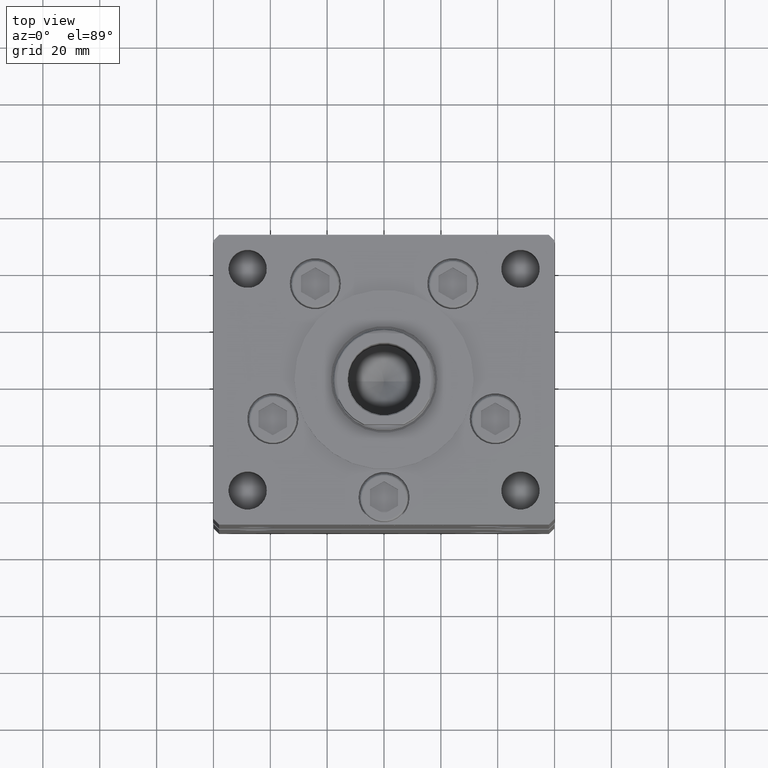
[diagram: clean part render]
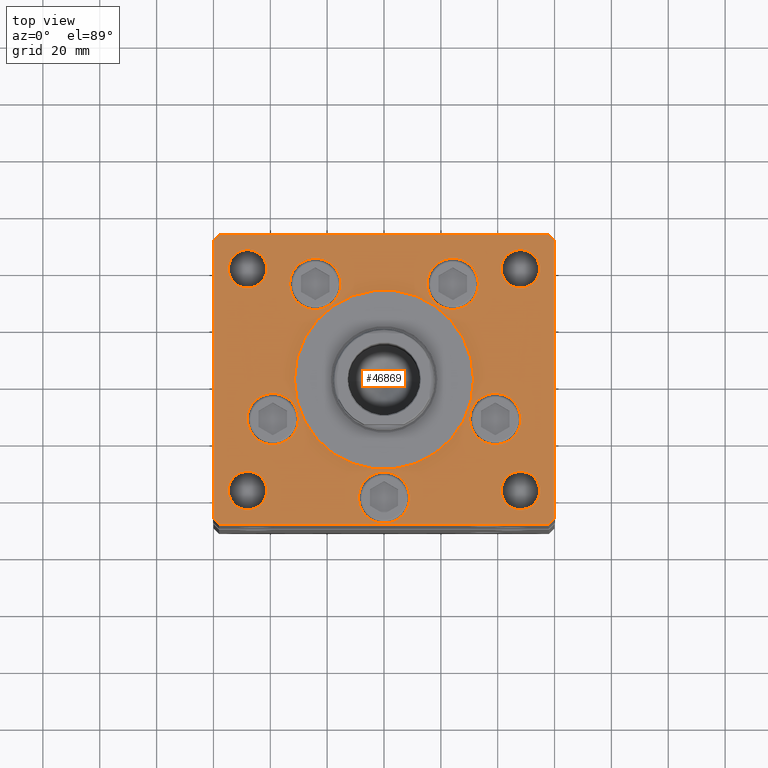
[diagram: same view with one face highlighted and labeled with its STEP entity id]
A machine part, top view. The second image highlights one B-rep face of the part: STEP entity #46869.
In plain terms, the highlighted planar face has unit normal (0, 0, 1).
Its self-contained STEP definition (entity closure, byte-faithful):
#782 = CARTESIAN_POINT ( 'NONE',  ( -57.99999999999998579, 50.99999999999997868, 0.000000000000000000 ) ) ;
#837 = VERTEX_POINT ( 'NONE', #29046 ) ;
#871 = LINE ( 'NONE', #17233, #8586 ) ;
#1367 = EDGE_CURVE ( 'NONE', #30274, #11673, #28158, .T. ) ;
#1580 = DIRECTION ( 'NONE',  ( -0.000000000000000000, -0.000000000000000000, -1.000000000000000000 ) ) ;
#1992 = AXIS2_PLACEMENT_3D ( 'NONE', #50149, #9944, #34349 ) ;
#2190 = EDGE_CURVE ( 'NONE', #20900, #30051, #12764, .T. ) ;
#2230 = CARTESIAN_POINT ( 'NONE',  ( 60.00000000000001421, 49.00000000000002842, 0.000000000000000000 ) ) ;
#2369 = DIRECTION ( 'NONE',  ( 0.000000000000000000, 0.000000000000000000, 1.000000000000000000 ) ) ;
#2932 = ORIENTED_EDGE ( 'NONE', *, *, #24734, .F. ) ;
#3004 = LINE ( 'NONE', #39467, #40319 ) ;
#3411 = VERTEX_POINT ( 'NONE', #38720 ) ;
#3558 = ORIENTED_EDGE ( 'NONE', *, *, #23156, .T. ) ;
#4224 = AXIS2_PLACEMENT_3D ( 'NONE', #39363, #10946, #27582 ) ;
#4364 = ORIENTED_EDGE ( 'NONE', *, *, #33864, .T. ) ;
#4400 = EDGE_CURVE ( 'NONE', #6152, #47256, #47921, .T. ) ;
#4680 = ORIENTED_EDGE ( 'NONE', *, *, #22556, .F. ) ;
#4682 = ORIENTED_EDGE ( 'NONE', *, *, #17877, .T. ) ;
#4913 = DIRECTION ( 'NONE',  ( -0.000000000000000000, 0.000000000000000000, 1.000000000000000000 ) ) ;
#5211 = VERTEX_POINT ( 'NONE', #52823 ) ;
#5451 = DIRECTION ( 'NONE',  ( 1.000000000000000000, 0.000000000000000000, 0.000000000000000000 ) ) ;
#5684 = CARTESIAN_POINT ( 'NONE',  ( -24.19288941894913592, 33.71874999999998579, 0.000000000000000000 ) ) ;
#5712 = DIRECTION ( 'NONE',  ( 0.000000000000000000, 0.000000000000000000, 1.000000000000000000 ) ) ;
#5740 = VERTEX_POINT ( 'NONE', #20210 ) ;
#6002 = ORIENTED_EDGE ( 'NONE', *, *, #2190, .F. ) ;
#6047 = AXIS2_PLACEMENT_3D ( 'NONE', #7162, #42616, #52448 ) ;
#6140 = DIRECTION ( 'NONE',  ( -0.000000000000000000, -0.000000000000000000, -1.000000000000000000 ) ) ;
#6152 = VERTEX_POINT ( 'NONE', #36231 ) ;
#6209 = CARTESIAN_POINT ( 'NONE',  ( -57.99999999999998579, 50.99999999999997868, 0.000000000000000000 ) ) ;
#6357 = DIRECTION ( 'NONE',  ( 1.000000000000000000, 0.000000000000000000, 0.000000000000000000 ) ) ;
#6626 = DIRECTION ( 'NONE',  ( 0.000000000000000000, 0.000000000000000000, 1.000000000000000000 ) ) ;
#7117 = EDGE_CURVE ( 'NONE', #5740, #7714, #49703, .T. ) ;
#7162 = CARTESIAN_POINT ( 'NONE',  ( 48.00000000000000000, 39.00000000000000000, 0.000000000000000000 ) ) ;
#7252 = EDGE_CURVE ( 'NONE', #44998, #5211, #36858, .T. ) ;
#7714 = VERTEX_POINT ( 'NONE', #12799 ) ;
#7904 = EDGE_CURVE ( 'NONE', #11673, #30274, #34347, .T. ) ;
#7921 = VERTEX_POINT ( 'NONE', #37121 ) ;
#8000 = DIRECTION ( 'NONE',  ( 1.000000000000000000, 0.000000000000000000, 0.000000000000000000 ) ) ;
#8247 = DIRECTION ( 'NONE',  ( 1.000000000000000000, 0.000000000000000000, 0.000000000000000000 ) ) ;
#8434 = EDGE_CURVE ( 'NONE', #20391, #49372, #48033, .T. ) ;
#8491 = AXIS2_PLACEMENT_3D ( 'NONE', #36404, #24615, #8000 ) ;
#8586 = VECTOR ( 'NONE', #13751, 1000.000000000000114 ) ;
#8680 = PLANE ( 'NONE',  #28367 ) ;
#8750 = DIRECTION ( 'NONE',  ( 1.000000000000000000, 0.000000000000000000, 0.000000000000000000 ) ) ;
#9010 = DIRECTION ( 'NONE',  ( 0.000000000000000000, 0.000000000000000000, 1.000000000000000000 ) ) ;
#9034 = VECTOR ( 'NONE', #51484, 1000.000000000000000 ) ;
#9144 = FACE_BOUND ( 'NONE', #50628, .T. ) ;
#9165 = EDGE_LOOP ( 'NONE', ( #4682, #26569 ) ) ;
#9178 = EDGE_CURVE ( 'NONE', #23357, #28304, #871, .T. ) ;
#9734 = VECTOR ( 'NONE', #45771, 1000.000000000000000 ) ;
#9886 = AXIS2_PLACEMENT_3D ( 'NONE', #24267, #40599, #15948 ) ;
#9944 = DIRECTION ( 'NONE',  ( 0.000000000000000000, 0.000000000000000000, 1.000000000000000000 ) ) ;
#9954 = AXIS2_PLACEMENT_3D ( 'NONE', #45916, #5712, #5451 ) ;
#10218 = CARTESIAN_POINT ( 'NONE',  ( -60.00000000000000000, 49.00000000000000000, 0.000000000000000000 ) ) ;
#10946 = DIRECTION ( 'NONE',  ( 0.000000000000000000, 0.000000000000000000, 1.000000000000000000 ) ) ;
#11007 = CARTESIAN_POINT ( 'NONE',  ( 48.00000000000000000, -39.00000000000001421, 0.000000000000000000 ) ) ;
#11132 = CARTESIAN_POINT ( 'NONE',  ( 58.00000000000000000, 51.00000000000000711, 0.000000000000000000 ) ) ;
#11220 = CARTESIAN_POINT ( 'NONE',  ( 60.00000000000001421, -48.99999999999992895, 0.000000000000000000 ) ) ;
#11241 = CARTESIAN_POINT ( 'NONE',  ( -48.00000000000000000, 39.00000000000000711, 0.000000000000000000 ) ) ;
#11673 = VERTEX_POINT ( 'NONE', #13421 ) ;
#11864 = VECTOR ( 'NONE', #40302, 1000.000000000000114 ) ;
#12027 = CARTESIAN_POINT ( 'NONE',  ( -39.12657522565563539, -13.83333333333332860, 0.000000000000000000 ) ) ;
#12131 = VERTEX_POINT ( 'NONE', #6209 ) ;
#12315 = DIRECTION ( 'NONE',  ( -0.7071067811865536790, 0.7071067811865414665, 0.000000000000000000 ) ) ;
#12587 = CARTESIAN_POINT ( 'NONE',  ( 48.00000000000000000, 39.00000000000000000, 0.000000000000000000 ) ) ;
#12764 = CIRCLE ( 'NONE', #4224, 9.000000000000001776 ) ;
#12799 = CARTESIAN_POINT ( 'NONE',  ( 41.25000000000000000, -39.00000000000001421, 0.000000000000000000 ) ) ;
#12893 = CARTESIAN_POINT ( 'NONE',  ( -60.00000000000000000, -49.00000000000004263, 0.000000000000000000 ) ) ;
#12966 = FACE_BOUND ( 'NONE', #36077, .T. ) ;
#13376 = EDGE_LOOP ( 'NONE', ( #35016, #39041, #16903, #4364, #48258, #45753, #42126, #3558 ) ) ;
#13421 = CARTESIAN_POINT ( 'NONE',  ( -15.19288941894913592, 33.71874999999998579, 0.000000000000000000 ) ) ;
#13433 = FACE_BOUND ( 'NONE', #39917, .T. ) ;
#13709 = EDGE_CURVE ( 'NONE', #33836, #7921, #45548, .T. ) ;
#13751 = DIRECTION ( 'NONE',  ( 0.7071067811865474617, -0.7071067811865474617, 0.000000000000000000 ) ) ;
#13805 = VERTEX_POINT ( 'NONE', #14173 ) ;
#14173 = CARTESIAN_POINT ( 'NONE',  ( 30.12657522565563539, -13.83333333333332682, 0.000000000000000000 ) ) ;
#14446 = EDGE_CURVE ( 'NONE', #12131, #837, #29491, .T. ) ;
#14633 = EDGE_CURVE ( 'NONE', #3411, #46385, #43825, .T. ) ;
#14778 = DIRECTION ( 'NONE',  ( -1.000000000000000000, 0.000000000000000000, 0.000000000000000000 ) ) ;
#15948 = DIRECTION ( 'NONE',  ( 1.000000000000000000, 0.000000000000000000, 0.000000000000000000 ) ) ;
#16568 = DIRECTION ( 'NONE',  ( 0.000000000000000000, 0.000000000000000000, 1.000000000000000000 ) ) ;
#16710 = CARTESIAN_POINT ( 'NONE',  ( -33.19288941894913592, 33.71874999999998579, 0.000000000000000000 ) ) ;
#16777 = CARTESIAN_POINT ( 'NONE',  ( 15.19288941894913236, 33.71874999999998579, 0.000000000000000000 ) ) ;
#16903 = ORIENTED_EDGE ( 'NONE', *, *, #35424, .T. ) ;
#17190 = FACE_BOUND ( 'NONE', #30588, .T. ) ;
#17233 = CARTESIAN_POINT ( 'NONE',  ( -60.00000000000000000, -49.00000000000004263, 0.000000000000000000 ) ) ;
#17247 = FACE_BOUND ( 'NONE', #46395, .T. ) ;
#17403 = EDGE_CURVE ( 'NONE', #30051, #20900, #34528, .T. ) ;
#17877 = EDGE_CURVE ( 'NONE', #5211, #44998, #26837, .T. ) ;
#17925 = VERTEX_POINT ( 'NONE', #48738 ) ;
#18013 = EDGE_CURVE ( 'NONE', #48512, #12131, #25947, .T. ) ;
#18336 = CARTESIAN_POINT ( 'NONE',  ( -58.00000000000000711, -51.00000000000002842, 0.000000000000000000 ) ) ;
#18345 = AXIS2_PLACEMENT_3D ( 'NONE', #33416, #9010, #8750 ) ;
#18377 = CARTESIAN_POINT ( 'NONE',  ( -31.50000000000000000, -6.938893903907228378E-15, 0.000000000000000000 ) ) ;
#18438 = CARTESIAN_POINT ( 'NONE',  ( 0.000000000000000000, -41.50000000000000000, 0.000000000000000000 ) ) ;
#18766 = DIRECTION ( 'NONE',  ( 1.000000000000000000, 0.000000000000000000, 0.000000000000000000 ) ) ;
#19211 = DIRECTION ( 'NONE',  ( 0.000000000000000000, 0.000000000000000000, 1.000000000000000000 ) ) ;
#19255 = CIRCLE ( 'NONE', #29529, 6.749999999999999112 ) ;
#19404 = CARTESIAN_POINT ( 'NONE',  ( 58.00000000000001421, -50.99999999999992184, 0.000000000000000000 ) ) ;
#19687 = AXIS2_PLACEMENT_3D ( 'NONE', #47613, #19211, #6357 ) ;
#19709 = EDGE_CURVE ( 'NONE', #33793, #48512, #24645, .T. ) ;
#20210 = CARTESIAN_POINT ( 'NONE',  ( 54.75000000000000000, -39.00000000000001421, 0.000000000000000000 ) ) ;
#20365 = DIRECTION ( 'NONE',  ( 0.000000000000000000, 0.000000000000000000, 1.000000000000000000 ) ) ;
#20391 = VERTEX_POINT ( 'NONE', #24318 ) ;
#20544 = EDGE_CURVE ( 'NONE', #13805, #22997, #41442, .T. ) ;
#20583 = EDGE_LOOP ( 'NONE', ( #30266, #34019 ) ) ;
#20836 = CARTESIAN_POINT ( 'NONE',  ( 0.000000000000000000, -6.938893903907228378E-15, 0.000000000000000000 ) ) ;
#20860 = CARTESIAN_POINT ( 'NONE',  ( 58.00000000000000000, 51.00000000000000711, 0.000000000000000000 ) ) ;
#20894 = DIRECTION ( 'NONE',  ( 1.000000000000000000, 0.000000000000000000, 0.000000000000000000 ) ) ;
#20900 = VERTEX_POINT ( 'NONE', #49677 ) ;
#21224 = CARTESIAN_POINT ( 'NONE',  ( 48.12657522565563539, -13.83333333333332860, 0.000000000000000000 ) ) ;
#21350 = EDGE_CURVE ( 'NONE', #34366, #23331, #19255, .T. ) ;
#21865 = CIRCLE ( 'NONE', #9886, 9.000000000000001776 ) ;
#22236 = DIRECTION ( 'NONE',  ( -1.000000000000000000, 0.000000000000000000, 0.000000000000000000 ) ) ;
#22556 = EDGE_CURVE ( 'NONE', #22997, #13805, #21865, .T. ) ;
#22608 = ORIENTED_EDGE ( 'NONE', *, *, #1367, .F. ) ;
#22701 = DIRECTION ( 'NONE',  ( 0.000000000000000000, 0.000000000000000000, 1.000000000000000000 ) ) ;
#22997 = VERTEX_POINT ( 'NONE', #21224 ) ;
#23148 = CARTESIAN_POINT ( 'NONE',  ( 41.25000000000000000, 39.00000000000000000, 0.000000000000000000 ) ) ;
#23156 = EDGE_CURVE ( 'NONE', #837, #23357, #30866, .T. ) ;
#23331 = VERTEX_POINT ( 'NONE', #27663 ) ;
#23357 = VERTEX_POINT ( 'NONE', #12893 ) ;
#24100 = DIRECTION ( 'NONE',  ( -0.000000000000000000, -0.000000000000000000, -1.000000000000000000 ) ) ;
#24267 = CARTESIAN_POINT ( 'NONE',  ( 39.12657522565563539, -13.83333333333332860, 0.000000000000000000 ) ) ;
#24318 = CARTESIAN_POINT ( 'NONE',  ( -48.12657522565563539, -13.83333333333332682, 0.000000000000000000 ) ) ;
#24509 = CIRCLE ( 'NONE', #9954, 9.000000000000001776 ) ;
#24576 = AXIS2_PLACEMENT_3D ( 'NONE', #39093, #6140, #27041 ) ;
#24615 = DIRECTION ( 'NONE',  ( 0.000000000000000000, 0.000000000000000000, 1.000000000000000000 ) ) ;
#24645 = LINE ( 'NONE', #41506, #38037 ) ;
#24734 = EDGE_CURVE ( 'NONE', #49372, #20391, #24509, .T. ) ;
#24760 = CIRCLE ( 'NONE', #8491, 31.50000000000000000 ) ;
#25591 = ORIENTED_EDGE ( 'NONE', *, *, #20544, .F. ) ;
#25801 = DIRECTION ( 'NONE',  ( 1.000000000000000000, 0.000000000000000000, 0.000000000000000000 ) ) ;
#25859 = ORIENTED_EDGE ( 'NONE', *, *, #4400, .F. ) ;
#25947 = LINE ( 'NONE', #20860, #9734 ) ;
#26569 = ORIENTED_EDGE ( 'NONE', *, *, #7252, .T. ) ;
#26622 = AXIS2_PLACEMENT_3D ( 'NONE', #29496, #1580, #22236 ) ;
#26697 = AXIS2_PLACEMENT_3D ( 'NONE', #20836, #28892, #8247 ) ;
#26837 = CIRCLE ( 'NONE', #32852, 6.749999999999999112 ) ;
#27041 = DIRECTION ( 'NONE',  ( -1.000000000000000000, 0.000000000000000000, 0.000000000000000000 ) ) ;
#27305 = CARTESIAN_POINT ( 'NONE',  ( 60.00000000000001421, -48.99999999999992895, 0.000000000000000000 ) ) ;
#27357 = AXIS2_PLACEMENT_3D ( 'NONE', #35806, #22701, #44111 ) ;
#27582 = DIRECTION ( 'NONE',  ( 1.000000000000000000, 0.000000000000000000, 0.000000000000000000 ) ) ;
#27663 = CARTESIAN_POINT ( 'NONE',  ( -41.25000000000000000, -39.00000000000001421, 0.000000000000000000 ) ) ;
#27841 = LINE ( 'NONE', #27305, #42613 ) ;
#28158 = CIRCLE ( 'NONE', #45284, 9.000000000000000000 ) ;
#28304 = VERTEX_POINT ( 'NONE', #18336 ) ;
#28353 = AXIS2_PLACEMENT_3D ( 'NONE', #5684, #30878, #25801 ) ;
#28367 = AXIS2_PLACEMENT_3D ( 'NONE', #50463, #4913, #18766 ) ;
#28564 = ORIENTED_EDGE ( 'NONE', *, *, #21350, .F. ) ;
#28892 = DIRECTION ( 'NONE',  ( 0.000000000000000000, 0.000000000000000000, 1.000000000000000000 ) ) ;
#29046 = CARTESIAN_POINT ( 'NONE',  ( -60.00000000000000000, 49.00000000000000000, 0.000000000000000000 ) ) ;
#29362 = ORIENTED_EDGE ( 'NONE', *, *, #14633, .F. ) ;
#29491 = LINE ( 'NONE', #782, #51507 ) ;
#29496 = CARTESIAN_POINT ( 'NONE',  ( -48.00000000000000000, 39.00000000000000711, 0.000000000000000000 ) ) ;
#29529 = AXIS2_PLACEMENT_3D ( 'NONE', #40916, #40405, #32898 ) ;
#29790 = FACE_BOUND ( 'NONE', #9165, .T. ) ;
#30051 = VERTEX_POINT ( 'NONE', #16777 ) ;
#30121 = FACE_BOUND ( 'NONE', #20583, .T. ) ;
#30266 = ORIENTED_EDGE ( 'NONE', *, *, #7117, .T. ) ;
#30274 = VERTEX_POINT ( 'NONE', #16710 ) ;
#30276 = DIRECTION ( 'NONE',  ( -0.7071067811865536790, -0.7071067811865414665, 0.000000000000000000 ) ) ;
#30588 = EDGE_LOOP ( 'NONE', ( #49850, #29362 ) ) ;
#30866 = LINE ( 'NONE', #10218, #9034 ) ;
#30878 = DIRECTION ( 'NONE',  ( 0.000000000000000000, 0.000000000000000000, 1.000000000000000000 ) ) ;
#31067 = DIRECTION ( 'NONE',  ( 1.000000000000000000, 0.000000000000000000, 0.000000000000000000 ) ) ;
#31448 = EDGE_CURVE ( 'NONE', #7714, #5740, #33149, .T. ) ;
#31591 = CARTESIAN_POINT ( 'NONE',  ( -24.19288941894913592, 33.71874999999998579, 0.000000000000000000 ) ) ;
#32473 = ORIENTED_EDGE ( 'NONE', *, *, #7904, .F. ) ;
#32852 = AXIS2_PLACEMENT_3D ( 'NONE', #11241, #24100, #40165 ) ;
#32898 = DIRECTION ( 'NONE',  ( 1.000000000000000000, 0.000000000000000000, 0.000000000000000000 ) ) ;
#33149 = CIRCLE ( 'NONE', #24576, 6.749999999999999112 ) ;
#33416 = CARTESIAN_POINT ( 'NONE',  ( 39.12657522565563539, -13.83333333333332860, 0.000000000000000000 ) ) ;
#33552 = FACE_BOUND ( 'NONE', #40092, .T. ) ;
#33793 = VERTEX_POINT ( 'NONE', #2230 ) ;
#33805 = FACE_BOUND ( 'NONE', #45348, .T. ) ;
#33836 = VERTEX_POINT ( 'NONE', #23148 ) ;
#33864 = EDGE_CURVE ( 'NONE', #37569, #33793, #27841, .T. ) ;
#34019 = ORIENTED_EDGE ( 'NONE', *, *, #31448, .T. ) ;
#34322 = ORIENTED_EDGE ( 'NONE', *, *, #41843, .F. ) ;
#34347 = CIRCLE ( 'NONE', #28353, 9.000000000000000000 ) ;
#34349 = DIRECTION ( 'NONE',  ( 1.000000000000000000, 0.000000000000000000, 0.000000000000000000 ) ) ;
#34366 = VERTEX_POINT ( 'NONE', #42140 ) ;
#34528 = CIRCLE ( 'NONE', #1992, 9.000000000000001776 ) ;
#34558 = ORIENTED_EDGE ( 'NONE', *, *, #8434, .F. ) ;
#35016 = ORIENTED_EDGE ( 'NONE', *, *, #9178, .T. ) ;
#35424 = EDGE_CURVE ( 'NONE', #17925, #37569, #48600, .T. ) ;
#35806 = CARTESIAN_POINT ( 'NONE',  ( -48.00000000000000000, -39.00000000000001421, 0.000000000000000000 ) ) ;
#36077 = EDGE_LOOP ( 'NONE', ( #34322, #36124 ) ) ;
#36124 = ORIENTED_EDGE ( 'NONE', *, *, #13709, .F. ) ;
#36231 = CARTESIAN_POINT ( 'NONE',  ( -9.000000000000000000, -41.50000000000000000, 0.000000000000000000 ) ) ;
#36404 = CARTESIAN_POINT ( 'NONE',  ( 0.000000000000000000, -6.938893903907228378E-15, 0.000000000000000000 ) ) ;
#36858 = CIRCLE ( 'NONE', #26622, 6.749999999999999112 ) ;
#37121 = CARTESIAN_POINT ( 'NONE',  ( 54.75000000000000000, 39.00000000000000000, 0.000000000000000000 ) ) ;
#37569 = VERTEX_POINT ( 'NONE', #11220 ) ;
#38037 = VECTOR ( 'NONE', #12315, 1000.000000000000000 ) ;
#38698 = EDGE_CURVE ( 'NONE', #46385, #3411, #24760, .T. ) ;
#38720 = CARTESIAN_POINT ( 'NONE',  ( 31.50000000000000000, -3.081256486593065689E-15, 0.000000000000000000 ) ) ;
#38998 = EDGE_CURVE ( 'NONE', #23331, #34366, #42770, .T. ) ;
#39041 = ORIENTED_EDGE ( 'NONE', *, *, #47892, .T. ) ;
#39093 = CARTESIAN_POINT ( 'NONE',  ( 48.00000000000000000, -39.00000000000001421, 0.000000000000000000 ) ) ;
#39128 = FACE_OUTER_BOUND ( 'NONE', #13376, .T. ) ;
#39363 = CARTESIAN_POINT ( 'NONE',  ( 24.19288941894913592, 33.71874999999998579, 0.000000000000000000 ) ) ;
#39467 = CARTESIAN_POINT ( 'NONE',  ( -58.00000000000000711, -51.00000000000002842, 0.000000000000000000 ) ) ;
#39917 = EDGE_LOOP ( 'NONE', ( #32473, #22608 ) ) ;
#40092 = EDGE_LOOP ( 'NONE', ( #4680, #25591 ) ) ;
#40165 = DIRECTION ( 'NONE',  ( -1.000000000000000000, 0.000000000000000000, 0.000000000000000000 ) ) ;
#40302 = DIRECTION ( 'NONE',  ( 0.7071067811865474617, 0.7071067811865474617, 0.000000000000000000 ) ) ;
#40319 = VECTOR ( 'NONE', #48041, 1000.000000000000000 ) ;
#40405 = DIRECTION ( 'NONE',  ( 0.000000000000000000, 0.000000000000000000, 1.000000000000000000 ) ) ;
#40599 = DIRECTION ( 'NONE',  ( 0.000000000000000000, 0.000000000000000000, 1.000000000000000000 ) ) ;
#40916 = CARTESIAN_POINT ( 'NONE',  ( -48.00000000000000000, -39.00000000000001421, 0.000000000000000000 ) ) ;
#41337 = CIRCLE ( 'NONE', #47329, 9.000000000000000000 ) ;
#41442 = CIRCLE ( 'NONE', #18345, 9.000000000000001776 ) ;
#41477 = DIRECTION ( 'NONE',  ( 1.000000000000000000, 0.000000000000000000, 0.000000000000000000 ) ) ;
#41506 = CARTESIAN_POINT ( 'NONE',  ( 60.00000000000001421, 49.00000000000002842, 0.000000000000000000 ) ) ;
#41843 = EDGE_CURVE ( 'NONE', #7921, #33836, #47000, .T. ) ;
#42100 = AXIS2_PLACEMENT_3D ( 'NONE', #12587, #20365, #20894 ) ;
#42126 = ORIENTED_EDGE ( 'NONE', *, *, #14446, .T. ) ;
#42140 = CARTESIAN_POINT ( 'NONE',  ( -54.75000000000000000, -39.00000000000001421, 0.000000000000000000 ) ) ;
#42239 = ORIENTED_EDGE ( 'NONE', *, *, #17403, .F. ) ;
#42613 = VECTOR ( 'NONE', #44172, 1000.000000000000000 ) ;
#42616 = DIRECTION ( 'NONE',  ( 0.000000000000000000, 0.000000000000000000, 1.000000000000000000 ) ) ;
#42631 = ORIENTED_EDGE ( 'NONE', *, *, #38998, .F. ) ;
#42770 = CIRCLE ( 'NONE', #27357, 6.749999999999999112 ) ;
#43825 = CIRCLE ( 'NONE', #26697, 31.50000000000000000 ) ;
#43885 = CARTESIAN_POINT ( 'NONE',  ( 9.000000000000000000, -41.50000000000000000, 0.000000000000000000 ) ) ;
#44104 = ORIENTED_EDGE ( 'NONE', *, *, #49758, .F. ) ;
#44111 = DIRECTION ( 'NONE',  ( 1.000000000000000000, 0.000000000000000000, 0.000000000000000000 ) ) ;
#44136 = DIRECTION ( 'NONE',  ( 1.000000000000000000, 0.000000000000000000, 0.000000000000000000 ) ) ;
#44172 = DIRECTION ( 'NONE',  ( 0.000000000000000000, 1.000000000000000000, 0.000000000000000000 ) ) ;
#44998 = VERTEX_POINT ( 'NONE', #52760 ) ;
#45284 = AXIS2_PLACEMENT_3D ( 'NONE', #31591, #2369, #31067 ) ;
#45348 = EDGE_LOOP ( 'NONE', ( #6002, #42239 ) ) ;
#45548 = CIRCLE ( 'NONE', #42100, 6.749999999999999112 ) ;
#45753 = ORIENTED_EDGE ( 'NONE', *, *, #18013, .T. ) ;
#45771 = DIRECTION ( 'NONE',  ( -1.000000000000000000, -2.392722035830078972E-16, 0.000000000000000000 ) ) ;
#45916 = CARTESIAN_POINT ( 'NONE',  ( -39.12657522565563539, -13.83333333333332860, 0.000000000000000000 ) ) ;
#46385 = VERTEX_POINT ( 'NONE', #18377 ) ;
#46395 = EDGE_LOOP ( 'NONE', ( #42631, #28564 ) ) ;
#46869 = ADVANCED_FACE ( 'NONE', ( #17190, #13433, #33805, #33552, #9144, #50140, #29790, #12966, #17247, #39128, #30121 ), #8680, .T. ) ;
#47000 = CIRCLE ( 'NONE', #6047, 6.749999999999999112 ) ;
#47123 = EDGE_LOOP ( 'NONE', ( #2932, #34558 ) ) ;
#47141 = AXIS2_PLACEMENT_3D ( 'NONE', #11007, #51489, #14778 ) ;
#47256 = VERTEX_POINT ( 'NONE', #43885 ) ;
#47329 = AXIS2_PLACEMENT_3D ( 'NONE', #18438, #6626, #44136 ) ;
#47613 = CARTESIAN_POINT ( 'NONE',  ( 0.000000000000000000, -41.50000000000000000, 0.000000000000000000 ) ) ;
#47892 = EDGE_CURVE ( 'NONE', #28304, #17925, #3004, .T. ) ;
#47921 = CIRCLE ( 'NONE', #19687, 9.000000000000000000 ) ;
#47923 = CARTESIAN_POINT ( 'NONE',  ( -30.12657522565563539, -13.83333333333332860, 0.000000000000000000 ) ) ;
#48033 = CIRCLE ( 'NONE', #53050, 9.000000000000001776 ) ;
#48041 = DIRECTION ( 'NONE',  ( 1.000000000000000000, 9.570888143320313916E-16, 0.000000000000000000 ) ) ;
#48258 = ORIENTED_EDGE ( 'NONE', *, *, #19709, .T. ) ;
#48512 = VERTEX_POINT ( 'NONE', #11132 ) ;
#48600 = LINE ( 'NONE', #19404, #11864 ) ;
#48738 = CARTESIAN_POINT ( 'NONE',  ( 58.00000000000001421, -50.99999999999992184, 0.000000000000000000 ) ) ;
#49372 = VERTEX_POINT ( 'NONE', #47923 ) ;
#49677 = CARTESIAN_POINT ( 'NONE',  ( 33.19288941894913592, 33.71874999999998579, 0.000000000000000000 ) ) ;
#49703 = CIRCLE ( 'NONE', #47141, 6.749999999999999112 ) ;
#49758 = EDGE_CURVE ( 'NONE', #47256, #6152, #41337, .T. ) ;
#49850 = ORIENTED_EDGE ( 'NONE', *, *, #38698, .F. ) ;
#50140 = FACE_BOUND ( 'NONE', #47123, .T. ) ;
#50149 = CARTESIAN_POINT ( 'NONE',  ( 24.19288941894913592, 33.71874999999998579, 0.000000000000000000 ) ) ;
#50463 = CARTESIAN_POINT ( 'NONE',  ( 0.000000000000000000, 0.000000000000000000, 0.000000000000000000 ) ) ;
#50628 = EDGE_LOOP ( 'NONE', ( #44104, #25859 ) ) ;
#51484 = DIRECTION ( 'NONE',  ( 0.000000000000000000, -1.000000000000000000, 0.000000000000000000 ) ) ;
#51489 = DIRECTION ( 'NONE',  ( -0.000000000000000000, -0.000000000000000000, -1.000000000000000000 ) ) ;
#51507 = VECTOR ( 'NONE', #30276, 1000.000000000000000 ) ;
#52448 = DIRECTION ( 'NONE',  ( 1.000000000000000000, 0.000000000000000000, 0.000000000000000000 ) ) ;
#52760 = CARTESIAN_POINT ( 'NONE',  ( -54.75000000000000000, 39.00000000000000711, 0.000000000000000000 ) ) ;
#52823 = CARTESIAN_POINT ( 'NONE',  ( -41.25000000000000000, 39.00000000000000711, 0.000000000000000000 ) ) ;
#53050 = AXIS2_PLACEMENT_3D ( 'NONE', #12027, #16568, #41477 ) ;